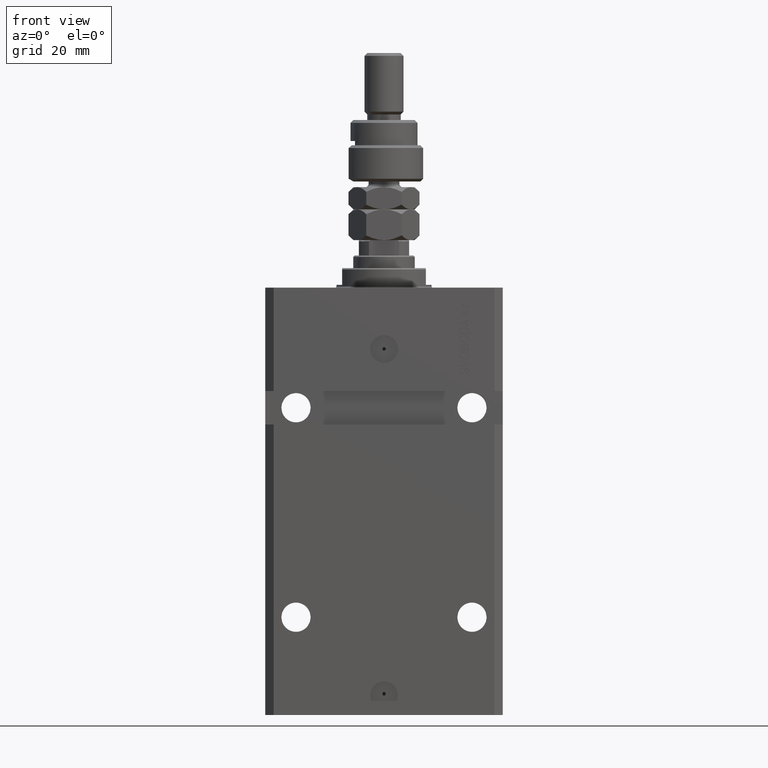
[diagram: clean part render]
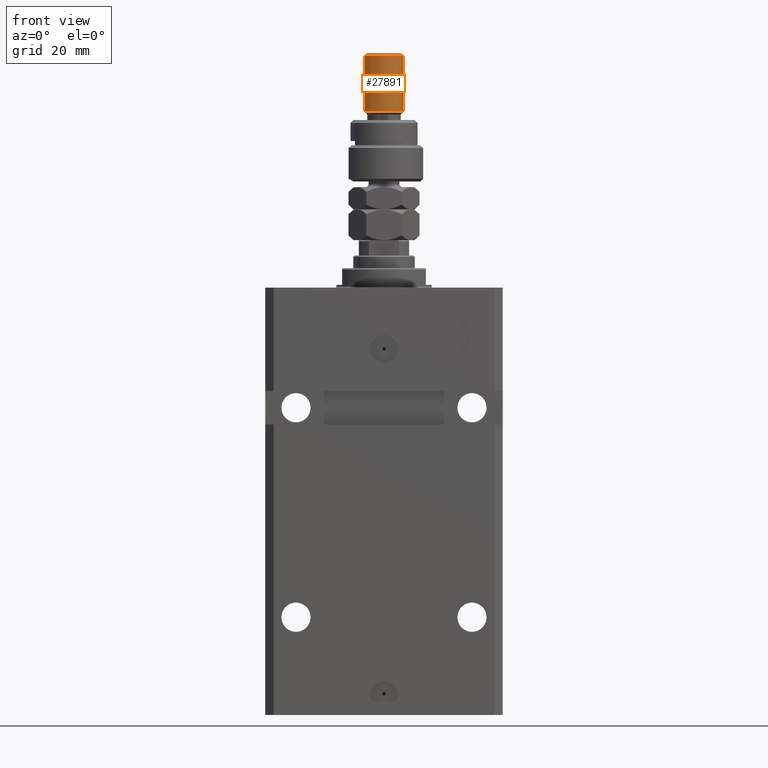
[diagram: same view with one face highlighted and labeled with its STEP entity id]
A machine part, front view. The second image highlights one B-rep face of the part: STEP entity #27891.
In plain terms, the highlighted cylindrical surface (edge-blend (fillet) strip) has radius 7 mm, axis along (-0, -0, -1).
Its self-contained STEP definition (entity closure, byte-faithful):
#537 = DIRECTION ( 'NONE',  ( -0.000000000000000000, -0.000000000000000000, 1.000000000000000000 ) ) ;
#675 = ORIENTED_EDGE ( 'NONE', *, *, #17192, .T. ) ;
#1525 = AXIS2_PLACEMENT_3D ( 'NONE', #47394, #537, #32555 ) ;
#1720 = VERTEX_POINT ( 'NONE', #46105 ) ;
#2252 = CARTESIAN_POINT ( 'NONE',  ( -7.000000000000000000, 0.000000000000000000, 46.00000000000000000 ) ) ;
#2740 = DIRECTION ( 'NONE',  ( -0.000000000000000000, -0.000000000000000000, -1.000000000000000000 ) ) ;
#3144 = DIRECTION ( 'NONE',  ( -0.000000000000000000, -0.000000000000000000, -1.000000000000000000 ) ) ;
#3479 = VERTEX_POINT ( 'NONE', #24882 ) ;
#4025 = CIRCLE ( 'NONE', #1525, 7.000000000000000000 ) ;
#5504 = CARTESIAN_POINT ( 'NONE',  ( -7.000000000000000000, 0.000000000000000000, 44.99999999999999289 ) ) ;
#5646 = AXIS2_PLACEMENT_3D ( 'NONE', #34652, #3144, #14617 ) ;
#5988 = CARTESIAN_POINT ( 'NONE',  ( 7.000000000000000000, 8.572527594031473190E-16, 24.99999999999998934 ) ) ;
#6149 = ORIENTED_EDGE ( 'NONE', *, *, #31865, .T. ) ;
#7427 = LINE ( 'NONE', #35018, #19293 ) ;
#14500 = DIRECTION ( 'NONE',  ( 1.000000000000000000, 0.000000000000000000, 0.000000000000000000 ) ) ;
#14617 = DIRECTION ( 'NONE',  ( -1.000000000000000000, 0.000000000000000000, 0.000000000000000000 ) ) ;
#17192 = EDGE_CURVE ( 'NONE', #1720, #27015, #40313, .T. ) ;
#17643 = DIRECTION ( 'NONE',  ( 0.000000000000000000, 0.000000000000000000, -1.000000000000000000 ) ) ;
#19293 = VECTOR ( 'NONE', #2740, 1000.000000000000000 ) ;
#19525 = AXIS2_PLACEMENT_3D ( 'NONE', #30131, #17643, #14500 ) ;
#19984 = EDGE_LOOP ( 'NONE', ( #44474, #675, #6149, #38267 ) ) ;
#22048 = LINE ( 'NONE', #2252, #22456 ) ;
#22456 = VECTOR ( 'NONE', #35747, 1000.000000000000000 ) ;
#22472 = VERTEX_POINT ( 'NONE', #5988 ) ;
#22685 = CYLINDRICAL_SURFACE ( 'NONE', #5646, 7.000000000000000000 ) ;
#24882 = CARTESIAN_POINT ( 'NONE',  ( -7.000000000000000000, 0.000000000000000000, 24.99999999999998934 ) ) ;
#27015 = VERTEX_POINT ( 'NONE', #5504 ) ;
#27891 = ADVANCED_FACE ( 'NONE', ( #50265 ), #22685, .T. ) ;
#28861 = EDGE_CURVE ( 'NONE', #3479, #22472, #4025, .T. ) ;
#30131 = CARTESIAN_POINT ( 'NONE',  ( 0.000000000000000000, 0.000000000000000000, 44.99999999999999289 ) ) ;
#31865 = EDGE_CURVE ( 'NONE', #27015, #3479, #22048, .T. ) ;
#32555 = DIRECTION ( 'NONE',  ( 1.000000000000000000, 0.000000000000000000, 0.000000000000000000 ) ) ;
#34652 = CARTESIAN_POINT ( 'NONE',  ( 0.000000000000000000, 0.000000000000000000, 46.00000000000000000 ) ) ;
#35018 = CARTESIAN_POINT ( 'NONE',  ( 7.000000000000000000, 8.572527594031473190E-16, 46.00000000000000000 ) ) ;
#35747 = DIRECTION ( 'NONE',  ( -0.000000000000000000, -0.000000000000000000, -1.000000000000000000 ) ) ;
#38267 = ORIENTED_EDGE ( 'NONE', *, *, #28861, .T. ) ;
#39187 = EDGE_CURVE ( 'NONE', #1720, #22472, #7427, .T. ) ;
#40313 = CIRCLE ( 'NONE', #19525, 7.000000000000000000 ) ;
#44474 = ORIENTED_EDGE ( 'NONE', *, *, #39187, .F. ) ;
#46105 = CARTESIAN_POINT ( 'NONE',  ( 7.000000000000000000, 8.572527594031473190E-16, 44.99999999999999289 ) ) ;
#47394 = CARTESIAN_POINT ( 'NONE',  ( 0.000000000000000000, 0.000000000000000000, 24.99999999999998934 ) ) ;
#50265 = FACE_OUTER_BOUND ( 'NONE', #19984, .T. ) ;